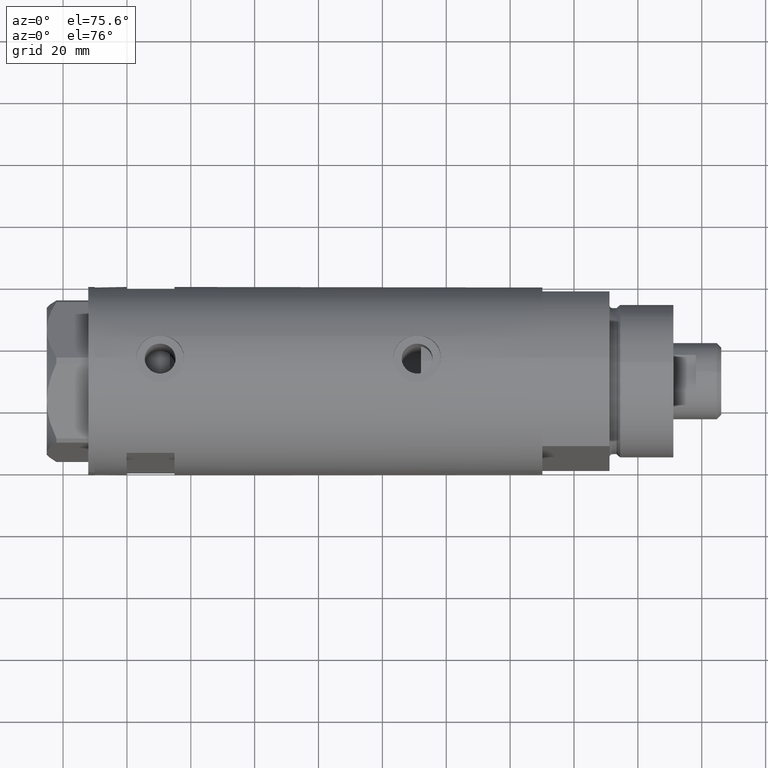
[diagram: clean part render]
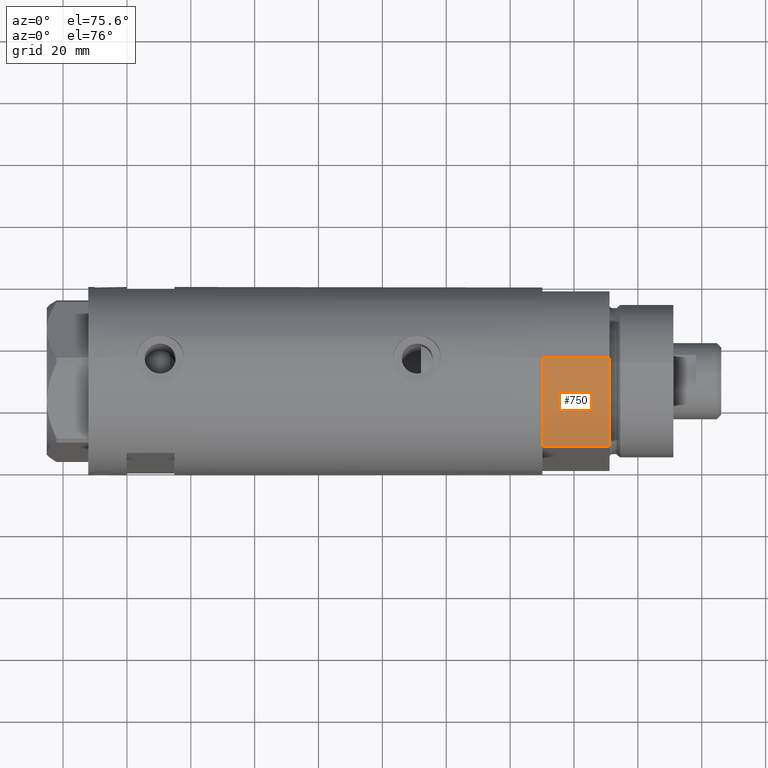
[diagram: same view with one face highlighted and labeled with its STEP entity id]
A machine part, auxiliary view. The second image highlights one B-rep face of the part: STEP entity #750.
In plain terms, the highlighted cylindrical surface (partial cylindrical patch) has radius 29.5 mm, axis along (-1, -0, 0).
Its self-contained STEP definition (entity closure, byte-faithful):
#85 = CYLINDRICAL_SURFACE ( 'NONE', #4356, 29.50000000000000355 ) ;
#250 = CARTESIAN_POINT ( 'NONE',  ( -15.66045976336582690, -25.00000000000000000, 0.000000000000000000 ) ) ;
#297 = EDGE_LOOP ( 'NONE', ( #1817, #1019, #584, #451 ) ) ;
#354 = CARTESIAN_POINT ( 'NONE',  ( 0.000000000000000000, 0.000000000000000000, 0.000000000000000000 ) ) ;
#408 = LINE ( 'NONE', #3860, #900 ) ;
#409 = DIRECTION ( 'NONE',  ( 1.000000000000000000, 0.000000000000000000, 0.000000000000000000 ) ) ;
#451 = ORIENTED_EDGE ( 'NONE', *, *, #1111, .T. ) ;
#511 = VERTEX_POINT ( 'NONE', #674 ) ;
#584 = ORIENTED_EDGE ( 'NONE', *, *, #3213, .T. ) ;
#619 = AXIS2_PLACEMENT_3D ( 'NONE', #3148, #1730, #409 ) ;
#674 = CARTESIAN_POINT ( 'NONE',  ( -29.50000000000000355, 0.000000000000000000, 21.00000000000000000 ) ) ;
#750 = ADVANCED_FACE ( 'NONE', ( #4186 ), #85, .T. ) ;
#788 = CARTESIAN_POINT ( 'NONE',  ( -29.50000000000000355, 0.000000000000000000, 0.000000000000000000 ) ) ;
#900 = VECTOR ( 'NONE', #1776, 1000.000000000000000 ) ;
#1019 = ORIENTED_EDGE ( 'NONE', *, *, #3173, .T. ) ;
#1111 = EDGE_CURVE ( 'NONE', #2485, #1458, #408, .T. ) ;
#1425 = VERTEX_POINT ( 'NONE', #788 ) ;
#1458 = VERTEX_POINT ( 'NONE', #1469 ) ;
#1469 = CARTESIAN_POINT ( 'NONE',  ( -15.66045976336583045, -24.99999999999999645, 20.99999999999999645 ) ) ;
#1653 = DIRECTION ( 'NONE',  ( -0.000000000000000000, -0.000000000000000000, -1.000000000000000000 ) ) ;
#1722 = DIRECTION ( 'NONE',  ( 0.000000000000000000, 0.000000000000000000, 1.000000000000000000 ) ) ;
#1730 = DIRECTION ( 'NONE',  ( 0.000000000000000000, 0.000000000000000000, 1.000000000000000000 ) ) ;
#1737 = DIRECTION ( 'NONE',  ( -1.000000000000000000, 0.000000000000000000, 0.000000000000000000 ) ) ;
#1741 = EDGE_CURVE ( 'NONE', #511, #1458, #1761, .T. ) ;
#1761 = CIRCLE ( 'NONE', #619, 29.50000000000000355 ) ;
#1776 = DIRECTION ( 'NONE',  ( -0.000000000000000000, -0.000000000000000000, 1.000000000000000000 ) ) ;
#1817 = ORIENTED_EDGE ( 'NONE', *, *, #1741, .F. ) ;
#1828 = CIRCLE ( 'NONE', #3507, 29.50000000000000355 ) ;
#1941 = LINE ( 'NONE', #3722, #3076 ) ;
#2063 = DIRECTION ( 'NONE',  ( -0.000000000000000000, -0.000000000000000000, -1.000000000000000000 ) ) ;
#2485 = VERTEX_POINT ( 'NONE', #250 ) ;
#3076 = VECTOR ( 'NONE', #1653, 1000.000000000000000 ) ;
#3119 = DIRECTION ( 'NONE',  ( 1.000000000000000000, 0.000000000000000000, 0.000000000000000000 ) ) ;
#3148 = CARTESIAN_POINT ( 'NONE',  ( 0.000000000000000000, 0.000000000000000000, 21.00000000000000000 ) ) ;
#3173 = EDGE_CURVE ( 'NONE', #511, #1425, #1941, .T. ) ;
#3213 = EDGE_CURVE ( 'NONE', #1425, #2485, #1828, .T. ) ;
#3507 = AXIS2_PLACEMENT_3D ( 'NONE', #354, #1722, #3119 ) ;
#3722 = CARTESIAN_POINT ( 'NONE',  ( -29.50000000000000355, 0.000000000000000000, 21.00000000000000000 ) ) ;
#3860 = CARTESIAN_POINT ( 'NONE',  ( -15.66045976336583401, -25.00000000000000000, 0.000000000000000000 ) ) ;
#4165 = CARTESIAN_POINT ( 'NONE',  ( 0.000000000000000000, 0.000000000000000000, 21.00000000000000000 ) ) ;
#4186 = FACE_OUTER_BOUND ( 'NONE', #297, .T. ) ;
#4356 = AXIS2_PLACEMENT_3D ( 'NONE', #4165, #2063, #1737 ) ;